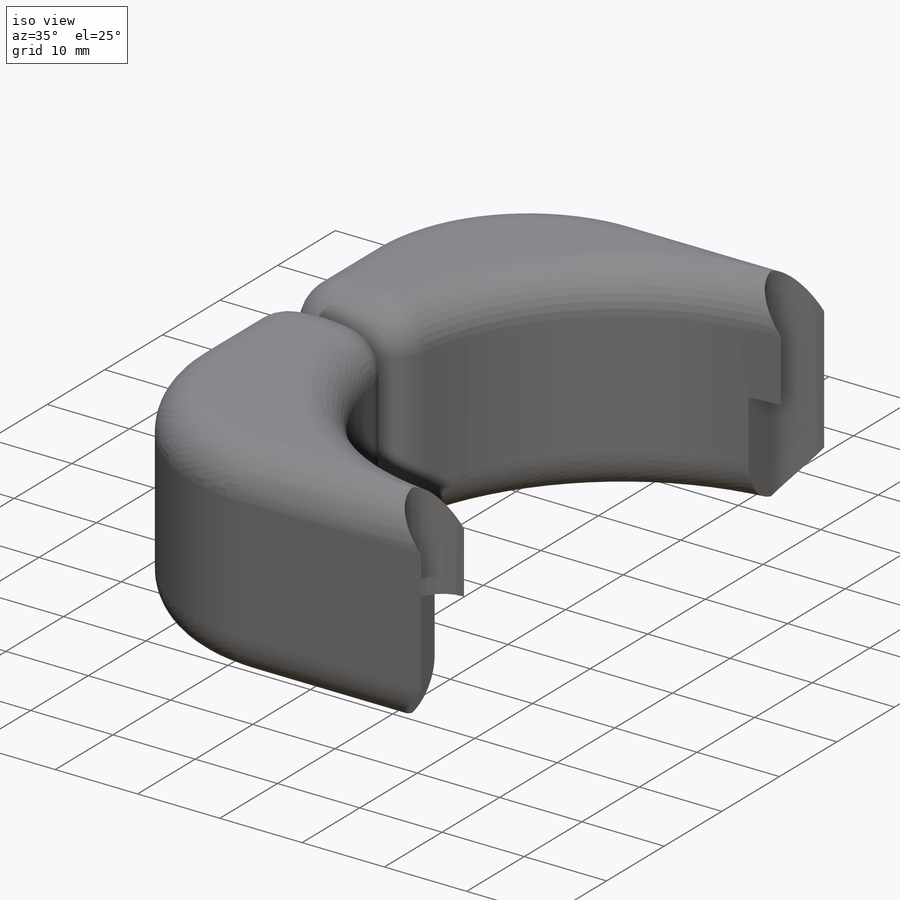
[diagram: iso view]
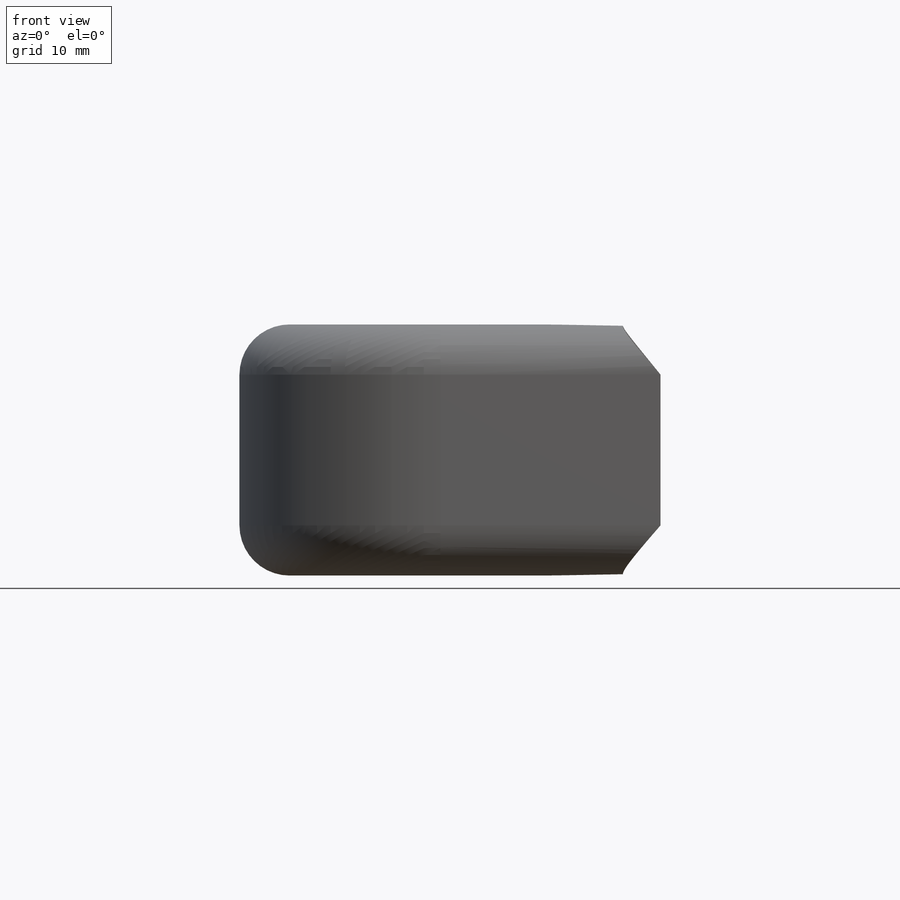
[diagram: front view]
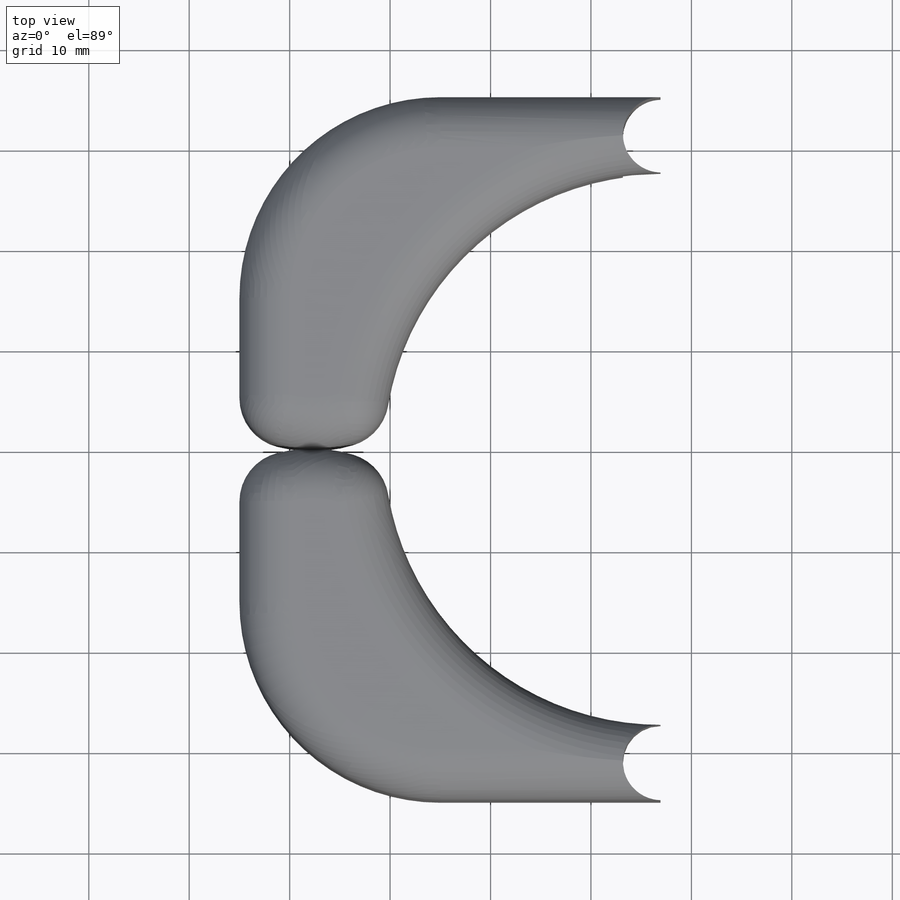
[diagram: top view]
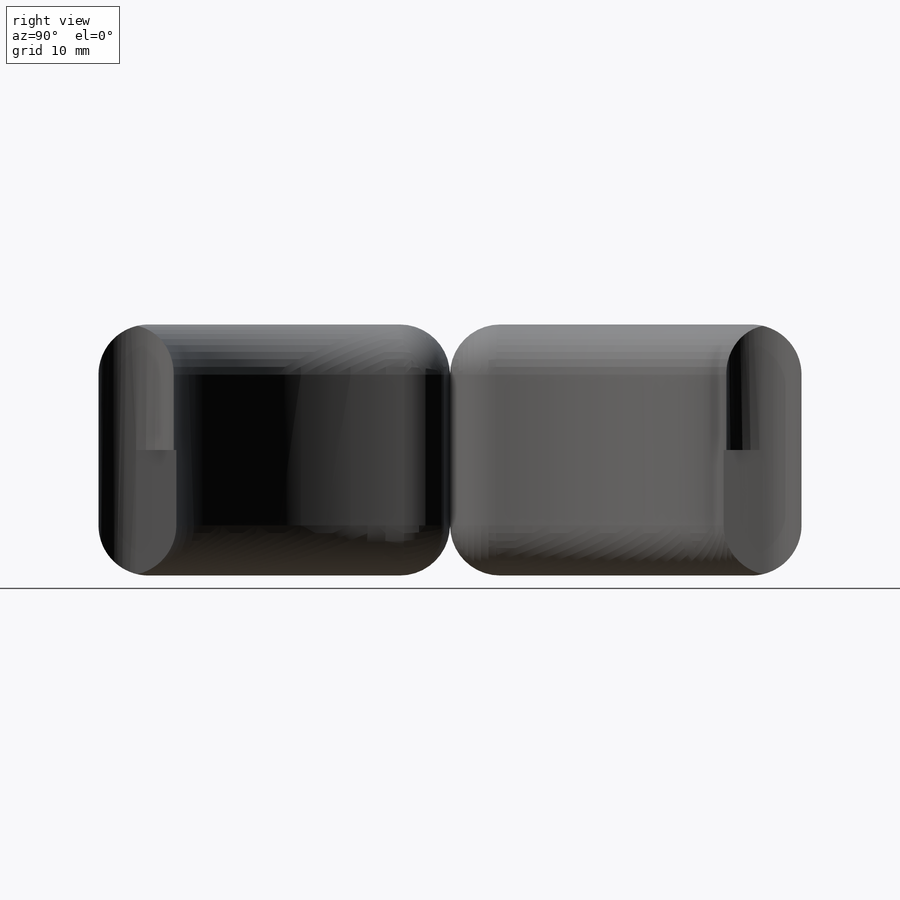
[diagram: right view]
SOLIDWORKS PART (.sldprt)
format: sldprt  version: not decoded by parser v0  size: 517,632 bytes
history: native  units: mm
features: plane x3, fillet x3, sketch x2, shell x2, material x1, extrude x1, cut_extrude x1 (+10 scaffold rows collapsed)
feature tree (23):
  scaffold x10  (default folders/planes/origin — collapsed)
  material  "Material <sin especificar>"
  plane  "Alzado"
  plane  "Planta"
  plane  "Vista lateral"
  sketch  "Croquis1"  dims[D3=55.0mm D4=165.0mm D5=20.0mm D7=5.0mm D1=130.0mm D2=70.0mm D6=4.0mm]
  extrude  "Saliente-Extruir1"  Depth=25mm
  fillet  "Redondeo2"  Radius=5mm
  fillet  "Redondeo3"  Radius=5mm
  fillet  "Redondeo4"  Radius=5mm
  sketch  "Croquis2"
  cut_extrude  "Cortar-Extruir1"  Depth=12.5mm
  shell  "Vaciado1"  Thickness=1.2mm
  shell  "Vaciado2"  Thickness=1.2mm
decode coverage: 8 of 9 modeling features carry decoded parameters
note: suppression state not decoded; provenance and decode notes live in map.json
